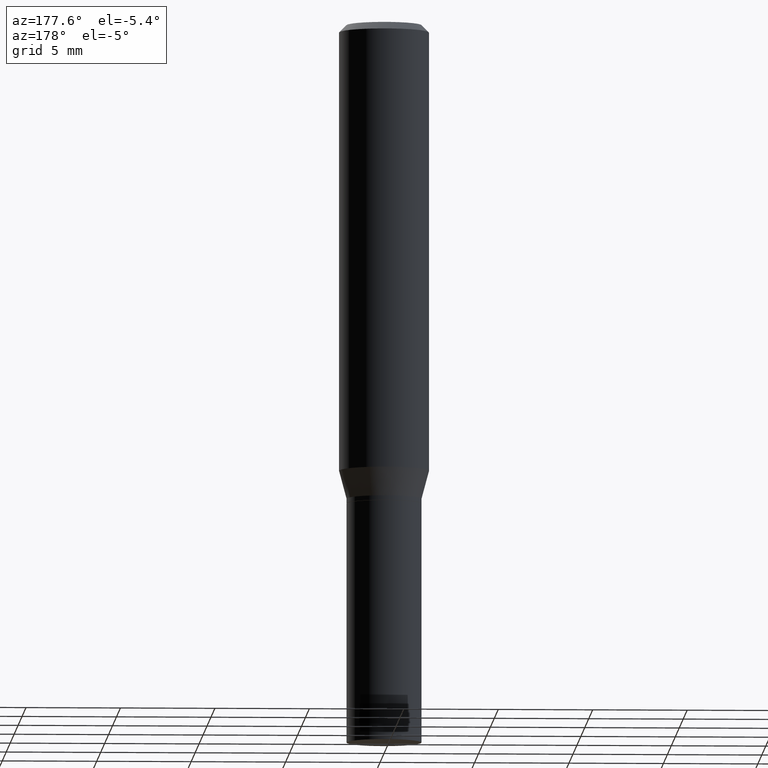
[diagram: clean part render]
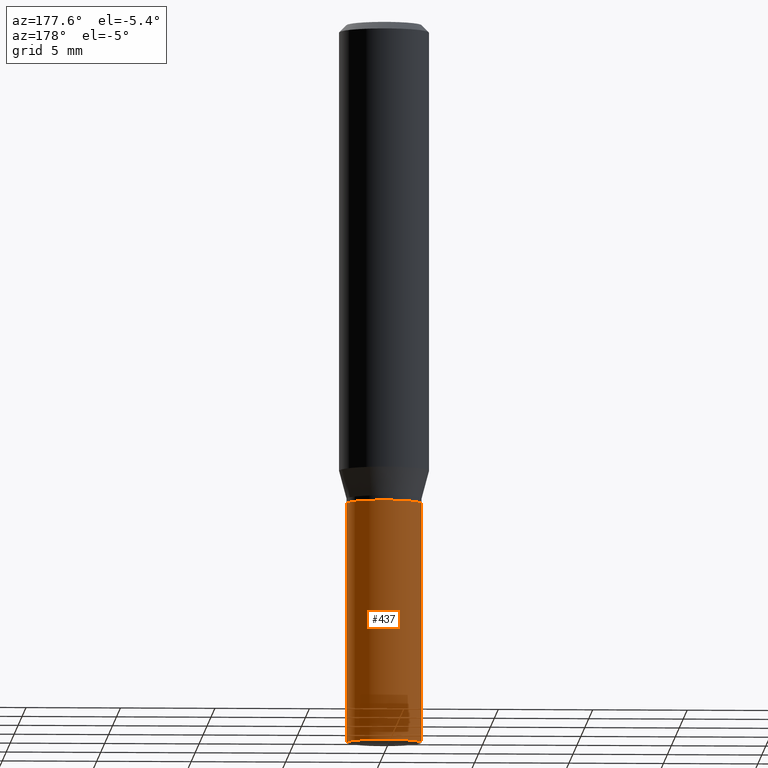
[diagram: same view with one face highlighted and labeled with its STEP entity id]
A machine part, auxiliary view. The second image highlights one B-rep face of the part: STEP entity #437.
In plain terms, the highlighted cylindrical surface (partial cylindrical patch) has radius 1.9837 mm, axis along (-0, 0, 1).
Its self-contained STEP definition (entity closure, byte-faithful):
#5 = VERTEX_POINT ( 'NONE', #394 ) ;
#26 = LINE ( 'NONE', #92, #189 ) ;
#27 = CYLINDRICAL_SURFACE ( 'NONE', #409, 0.07810000000000000275 ) ;
#59 = CARTESIAN_POINT ( 'NONE',  ( 0.000000000000000000, 0.000000000000000000, 0.000000000000000000 ) ) ;
#73 = CARTESIAN_POINT ( 'NONE',  ( 0.07810000000000000275, -4.036850723970443413E-15, -1.000000000000000222 ) ) ;
#79 = EDGE_LOOP ( 'NONE', ( #370, #129, #338, #191 ) ) ;
#92 = CARTESIAN_POINT ( 'NONE',  ( -0.07810000000000000275, 5.549338766286382647E-16, -3.841688305489081275E-30 ) ) ;
#129 = ORIENTED_EDGE ( 'NONE', *, *, #399, .T. ) ;
#135 = CARTESIAN_POINT ( 'NONE',  ( 0.07810000000000000275, -5.453693851272974364E-16, 3.808294061896625703E-30 ) ) ;
#144 = EDGE_CURVE ( 'NONE', #151, #5, #182, .T. ) ;
#151 = VERTEX_POINT ( 'NONE', #73 ) ;
#166 = VERTEX_POINT ( 'NONE', #362 ) ;
#177 = LINE ( 'NONE', #135, #379 ) ;
#182 = CIRCLE ( 'NONE', #296, 0.07810000000000000275 ) ;
#189 = VECTOR ( 'NONE', #356, 39.37007874015748143 ) ;
#190 = DIRECTION ( 'NONE',  ( 1.000000000000000000, -6.982962677686266711E-15, 0.000000000000000000 ) ) ;
#191 = ORIENTED_EDGE ( 'NONE', *, *, #393, .F. ) ;
#195 = AXIS2_PLACEMENT_3D ( 'NONE', #248, #382, #314 ) ;
#213 = DIRECTION ( 'NONE',  ( 1.000000000000000000, -6.982962677686266711E-15, 4.876176775795935232E-29 ) ) ;
#248 = CARTESIAN_POINT ( 'NONE',  ( 3.668203209277704895E-29, -5.237222008264718177E-15, -1.500000000000000222 ) ) ;
#257 = VERTEX_POINT ( 'NONE', #444 ) ;
#296 = AXIS2_PLACEMENT_3D ( 'NONE', #397, #432, #190 ) ;
#314 = DIRECTION ( 'NONE',  ( 1.000000000000000000, -6.982962677686266711E-15, 0.000000000000000000 ) ) ;
#320 = DIRECTION ( 'NONE',  ( -2.445468806185136597E-29, 3.491481338843145583E-15, 1.000000000000000000 ) ) ;
#338 = ORIENTED_EDGE ( 'NONE', *, *, #144, .F. ) ;
#356 = DIRECTION ( 'NONE',  ( -2.445468806185136877E-29, 3.491481338843145188E-15, 1.000000000000000000 ) ) ;
#360 = CIRCLE ( 'NONE', #195, 0.07810000000000000275 ) ;
#362 = CARTESIAN_POINT ( 'NONE',  ( -0.07810000000000000275, -3.809417796925293812E-15, -1.500000000000000222 ) ) ;
#370 = ORIENTED_EDGE ( 'NONE', *, *, #442, .T. ) ;
#379 = VECTOR ( 'NONE', #419, 39.37007874015748143 ) ;
#382 = DIRECTION ( 'NONE',  ( -2.445468806185136597E-29, 3.491481338843145583E-15, 1.000000000000000000 ) ) ;
#393 = EDGE_CURVE ( 'NONE', #257, #151, #177, .T. ) ;
#394 = CARTESIAN_POINT ( 'NONE',  ( -0.07810000000000000275, -3.809417796925293812E-15, -1.000000000000000222 ) ) ;
#397 = CARTESIAN_POINT ( 'NONE',  ( 2.445468806185136877E-29, -3.491481338843145977E-15, -1.000000000000000222 ) ) ;
#399 = EDGE_CURVE ( 'NONE', #166, #5, #26, .T. ) ;
#409 = AXIS2_PLACEMENT_3D ( 'NONE', #59, #320, #213 ) ;
#419 = DIRECTION ( 'NONE',  ( -2.445468806185136877E-29, 3.491481338843145188E-15, 1.000000000000000000 ) ) ;
#432 = DIRECTION ( 'NONE',  ( -2.445468806185136597E-29, 3.491481338843145583E-15, 1.000000000000000000 ) ) ;
#437 = ADVANCED_FACE ( 'NONE', ( #463 ), #27, .T. ) ;
#442 = EDGE_CURVE ( 'NONE', #257, #166, #360, .T. ) ;
#444 = CARTESIAN_POINT ( 'NONE',  ( 0.07810000000000000275, -5.782591393392015613E-15, -1.500000000000000222 ) ) ;
#463 = FACE_OUTER_BOUND ( 'NONE', #79, .T. ) ;